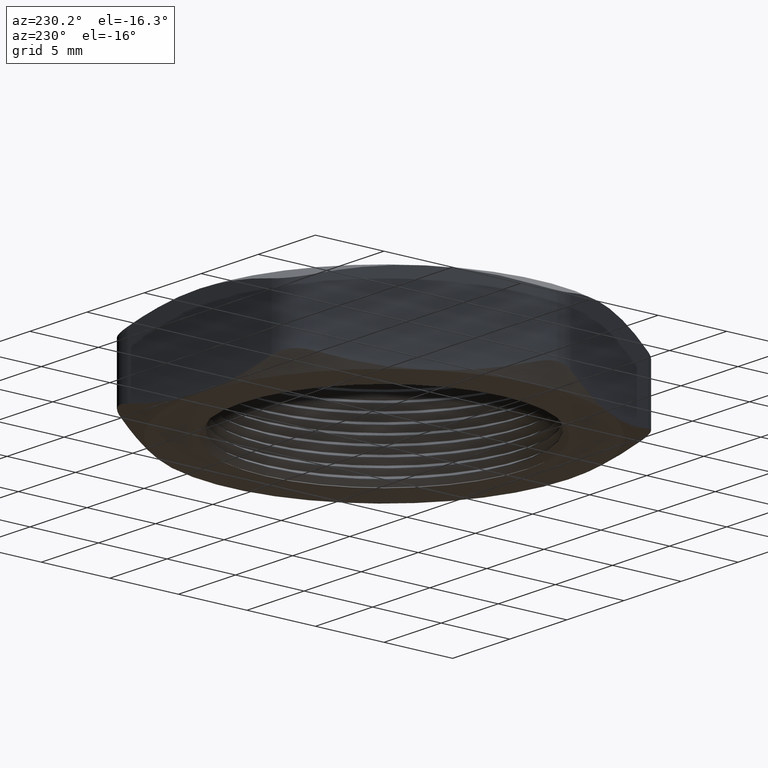
[diagram: clean part render]
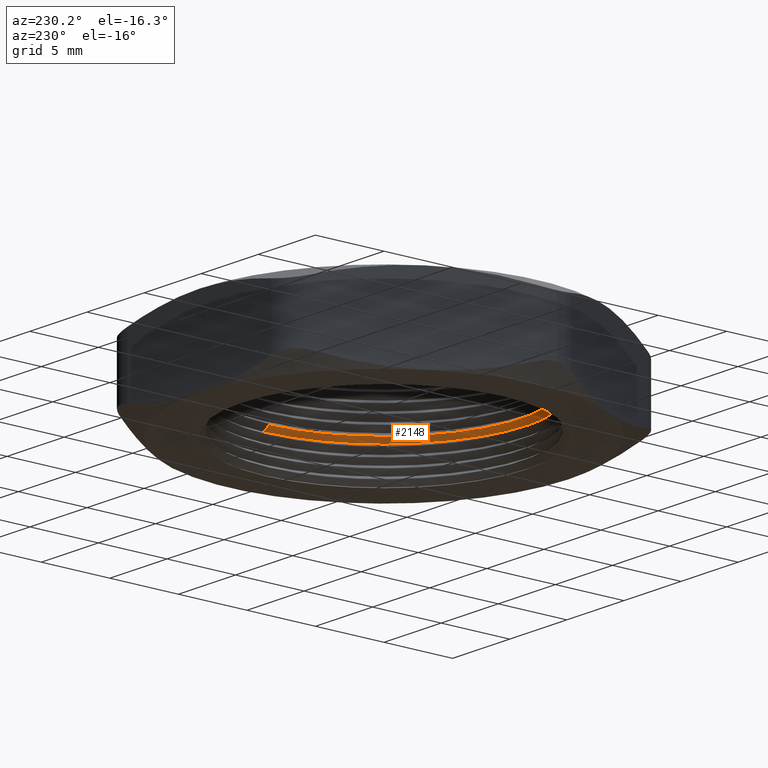
[diagram: same view with one face highlighted and labeled with its STEP entity id]
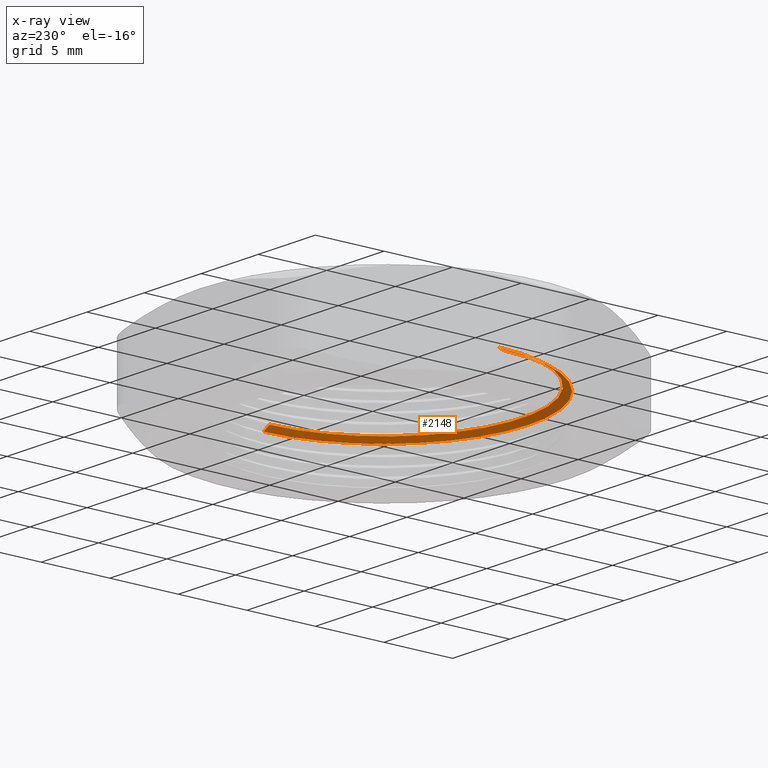
[diagram: x-ray of the same camera — body ghosted, the highlighted face saturated]
A machine part, auxiliary view. The second image highlights one B-rep face of the part: STEP entity #2148.
The next image is the same camera in x-ray: the body ghosted, the highlighted face saturated — about 18% of this face is hidden behind the body in this view.
In plain terms, the highlighted conical surface has half-angle 60 deg.
Its self-contained STEP definition (entity closure, byte-faithful):
#46 = DIRECTION ( 'NONE',  ( 0.8660254037844441500, 1.060575238724913900E-016, -0.4999999999999902300 ) ) ;
#47 = VECTOR ( 'NONE', #46, 39.37007874015748100 ) ;
#48 = CARTESIAN_POINT ( 'NONE',  ( 0.4150000000000000400, 5.082284216461516300E-017, 0.1034529946162077700 ) ) ;
#49 = LINE ( 'NONE', #48, #47 ) ;
#50 = CARTESIAN_POINT ( 'NONE',  ( 0.3950000000000000200, 4.837354856632044300E-017, 0.1149999999999999900 ) ) ;
#51 = CARTESIAN_POINT ( 'NONE',  ( -0.3950000000000000200, 0.0000000000000000000, 0.1149999999999999900 ) ) ;
#1475 = DIRECTION ( 'NONE',  ( 1.000000000000000000, 0.0000000000000000000, 0.0000000000000000000 ) ) ;
#1476 = DIRECTION ( 'NONE',  ( 0.0000000000000000000, 0.0000000000000000000, 1.000000000000000000 ) ) ;
#1477 = CARTESIAN_POINT ( 'NONE',  ( 0.0000000000000000000, 0.0000000000000000000, 0.1149999999999999900 ) ) ;
#1478 = AXIS2_PLACEMENT_3D ( 'NONE', #1477, #1476, #1475 ) ;
#1479 = CIRCLE ( 'NONE', #1478, 0.3950000000000000200 ) ;
#1543 = CARTESIAN_POINT ( 'NONE',  ( 0.0000000000000000000, 0.0000000000000000000, 0.1034529946162077700 ) ) ;
#1544 = FACE_OUTER_BOUND ( 'NONE', #2149, .T. ) ;
#1573 = DIRECTION ( 'NONE',  ( -1.000000000000000000, 0.0000000000000000000, 0.0000000000000000000 ) ) ;
#1574 = DIRECTION ( 'NONE',  ( 0.0000000000000000000, 0.0000000000000000000, -1.000000000000000000 ) ) ;
#1575 = AXIS2_PLACEMENT_3D ( 'NONE', #1543, #1574, #1573 ) ;
#1576 = CONICAL_SURFACE ( 'NONE', #1575, 0.4150000000000000400, 1.047197551196609000 ) ;
#1653 = VECTOR ( 'NONE', #1659, 39.37007874015748100 ) ;
#1654 = CARTESIAN_POINT ( 'NONE',  ( -0.4150000000000000400, 0.0000000000000000000, 0.1034529946162077700 ) ) ;
#1655 = LINE ( 'NONE', #1654, #1653 ) ;
#1659 = DIRECTION ( 'NONE',  ( -0.8660254037844441500, 0.0000000000000000000, -0.4999999999999902300 ) ) ;
#2118 = ORIENTED_EDGE ( 'NONE', *, *, #2119, .T. ) ;
#2119 = EDGE_CURVE ( 'NONE', #2257, #2258, #1479, .T. ) ;
#2148 = ADVANCED_FACE ( 'NONE', ( #1544 ), #1576, .F. ) ;
#2149 = EDGE_LOOP ( 'NONE', ( #2118, #2259, #2176, #2177 ) ) ;
#2176 = ORIENTED_EDGE ( 'NONE', *, *, #2220, .F. ) ;
#2177 = ORIENTED_EDGE ( 'NONE', *, *, #2178, .F. ) ;
#2178 = EDGE_CURVE ( 'NONE', #2257, #2218, #1655, .T. ) ;
#2218 = VERTEX_POINT ( 'NONE', #2529 ) ;
#2220 = EDGE_CURVE ( 'NONE', #2218, #2221, #2528, .T. ) ;
#2221 = VERTEX_POINT ( 'NONE', #2523 ) ;
#2257 = VERTEX_POINT ( 'NONE', #51 ) ;
#2258 = VERTEX_POINT ( 'NONE', #50 ) ;
#2259 = ORIENTED_EDGE ( 'NONE', *, *, #2260, .T. ) ;
#2260 = EDGE_CURVE ( 'NONE', #2258, #2221, #49, .T. ) ;
#2523 = CARTESIAN_POINT ( 'NONE',  ( 0.4150000000000000400, 5.082284216461516300E-017, 0.1034529946162077700 ) ) ;
#2524 = DIRECTION ( 'NONE',  ( 1.000000000000000000, 0.0000000000000000000, 0.0000000000000000000 ) ) ;
#2525 = DIRECTION ( 'NONE',  ( 0.0000000000000000000, 0.0000000000000000000, 1.000000000000000000 ) ) ;
#2526 = CARTESIAN_POINT ( 'NONE',  ( 0.0000000000000000000, 0.0000000000000000000, 0.1034529946162077700 ) ) ;
#2527 = AXIS2_PLACEMENT_3D ( 'NONE', #2526, #2525, #2524 ) ;
#2528 = CIRCLE ( 'NONE', #2527, 0.4150000000000000400 ) ;
#2529 = CARTESIAN_POINT ( 'NONE',  ( -0.4150000000000000400, 0.0000000000000000000, 0.1034529946162077700 ) ) ;